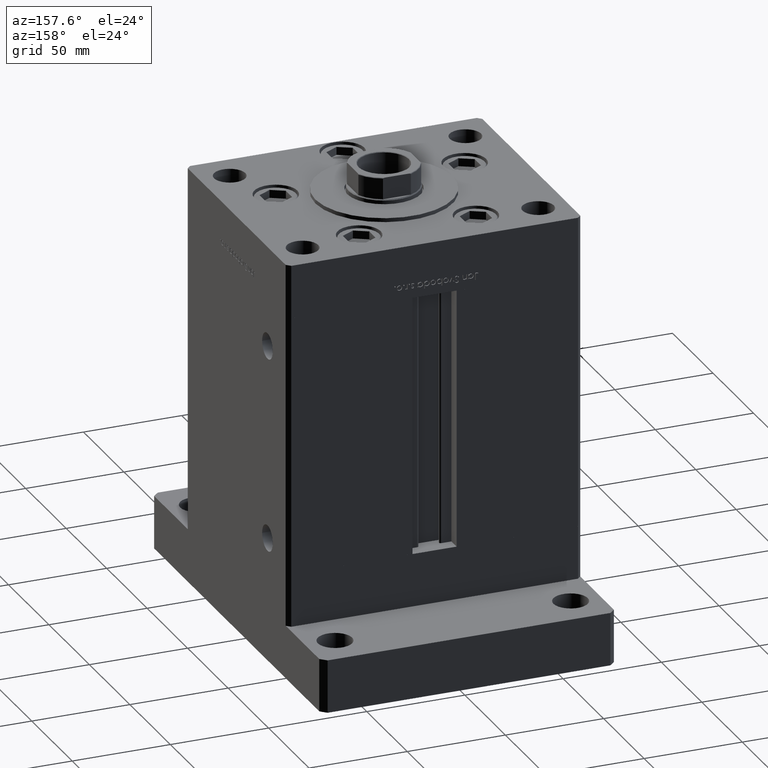
[diagram: clean part render]
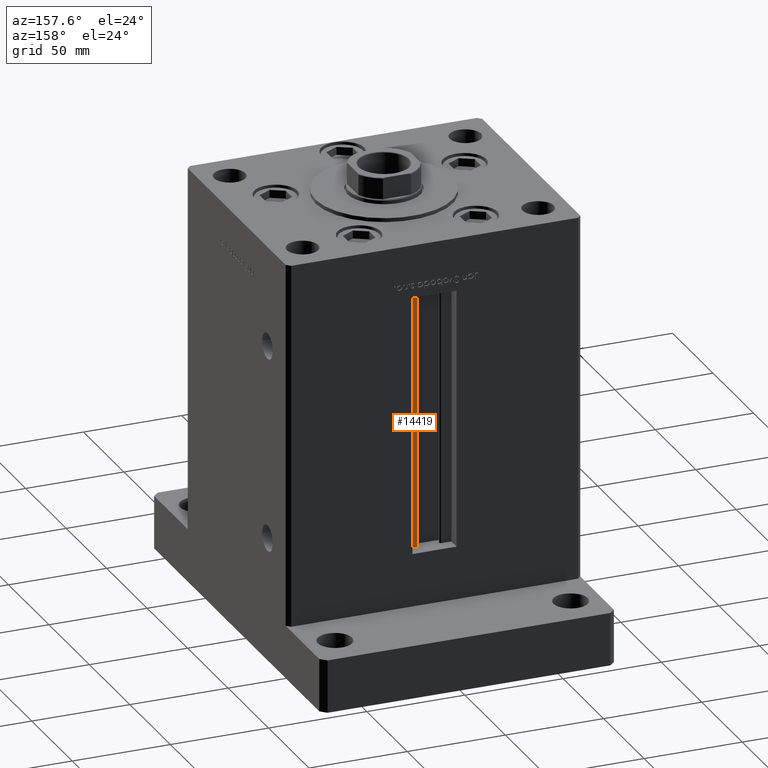
[diagram: same view with one face highlighted and labeled with its STEP entity id]
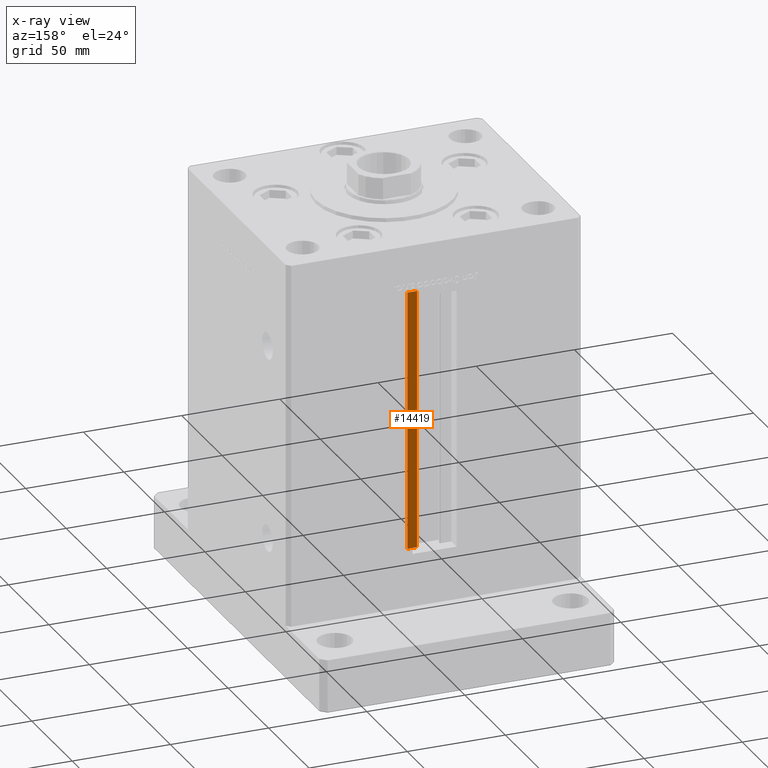
[diagram: x-ray of the same camera — body ghosted, the highlighted face saturated]
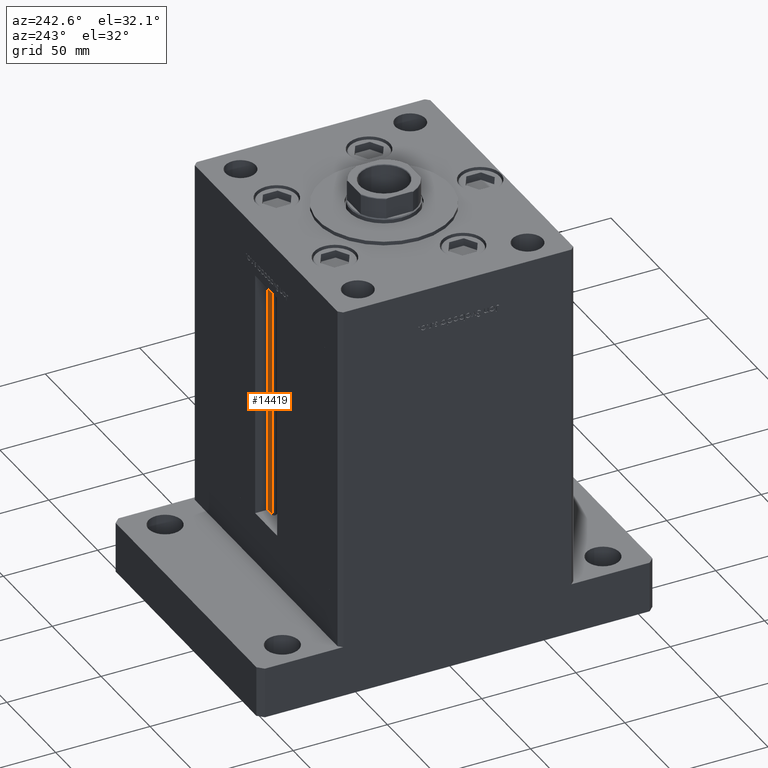
[diagram: same view with one face highlighted and labeled with its STEP entity id]
A machine part, auxiliary view. The second image highlights one B-rep face of the part: STEP entity #14419.
The next image is the same camera in x-ray: the body ghosted, the highlighted face saturated — about 0% of this face is hidden behind the body in this view.
A second angle (auxiliary view) of the same face is appended — the face is thin or edge-on in the first view.
In plain terms, the highlighted planar face has unit normal (0, -1, 0).
Its self-contained STEP definition (entity closure, byte-faithful):
#3107 = DIRECTION ( 'NONE',  ( -0.000000000000000000, -0.000000000000000000, 1.000000000000000000 ) ) ;
#7025 = DIRECTION ( 'NONE',  ( 1.000000000000000000, 0.000000000000000000, 0.000000000000000000 ) ) ;
#7454 = LINE ( 'NONE', #40305, #50705 ) ;
#7972 = CARTESIAN_POINT ( 'NONE',  ( 11.25000000000000178, 55.99999999999999289, 0.000000000000000000 ) ) ;
#8278 = EDGE_LOOP ( 'NONE', ( #50611, #12285, #13803, #49064 ) ) ;
#8502 = DIRECTION ( 'NONE',  ( 0.000000000000000000, -1.000000000000000000, 0.000000000000000000 ) ) ;
#8661 = EDGE_CURVE ( 'NONE', #30964, #39166, #15454, .T. ) ;
#9325 = VERTEX_POINT ( 'NONE', #7972 ) ;
#10429 = AXIS2_PLACEMENT_3D ( 'NONE', #20175, #8502, #45144 ) ;
#10572 = DIRECTION ( 'NONE',  ( -0.000000000000000000, -0.000000000000000000, 1.000000000000000000 ) ) ;
#10947 = EDGE_CURVE ( 'NONE', #30964, #9325, #35798, .T. ) ;
#12285 = ORIENTED_EDGE ( 'NONE', *, *, #10947, .F. ) ;
#13803 = ORIENTED_EDGE ( 'NONE', *, *, #8661, .T. ) ;
#14419 = ADVANCED_FACE ( 'NONE', ( #45415 ), #29127, .F. ) ;
#15454 = LINE ( 'NONE', #39609, #17677 ) ;
#17651 = DIRECTION ( 'NONE',  ( -1.000000000000000000, 0.000000000000000000, 0.000000000000000000 ) ) ;
#17677 = VECTOR ( 'NONE', #10572, 1000.000000000000000 ) ;
#17751 = VECTOR ( 'NONE', #7025, 1000.000000000000000 ) ;
#20175 = CARTESIAN_POINT ( 'NONE',  ( 6.183333333334001480, 55.99999999999999289, 0.000000000000000000 ) ) ;
#21984 = CARTESIAN_POINT ( 'NONE',  ( 0.000000000000000000, 55.99999999999999289, 132.0000000000000000 ) ) ;
#24642 = CARTESIAN_POINT ( 'NONE',  ( 6.183333333334001480, 55.99999999999999289, 0.000000000000000000 ) ) ;
#25303 = CARTESIAN_POINT ( 'NONE',  ( 6.183333333334001480, 55.99999999999999289, 132.0000000000000000 ) ) ;
#27142 = VERTEX_POINT ( 'NONE', #40844 ) ;
#29127 = PLANE ( 'NONE',  #10429 ) ;
#30055 = VECTOR ( 'NONE', #17651, 1000.000000000000000 ) ;
#30964 = VERTEX_POINT ( 'NONE', #32842 ) ;
#32842 = CARTESIAN_POINT ( 'NONE',  ( 6.183333333334001480, 55.99999999999999289, 0.000000000000000000 ) ) ;
#33124 = EDGE_CURVE ( 'NONE', #9325, #27142, #7454, .T. ) ;
#35798 = LINE ( 'NONE', #24642, #17751 ) ;
#39166 = VERTEX_POINT ( 'NONE', #25303 ) ;
#39609 = CARTESIAN_POINT ( 'NONE',  ( 6.183333333334001480, 55.99999999999999289, 0.000000000000000000 ) ) ;
#40305 = CARTESIAN_POINT ( 'NONE',  ( 11.25000000000000178, 55.99999999999999289, 0.000000000000000000 ) ) ;
#40844 = CARTESIAN_POINT ( 'NONE',  ( 11.25000000000000178, 55.99999999999999289, 132.0000000000000000 ) ) ;
#41134 = EDGE_CURVE ( 'NONE', #27142, #39166, #42096, .T. ) ;
#42096 = LINE ( 'NONE', #21984, #30055 ) ;
#45144 = DIRECTION ( 'NONE',  ( 0.000000000000000000, -0.000000000000000000, -1.000000000000000000 ) ) ;
#45415 = FACE_OUTER_BOUND ( 'NONE', #8278, .T. ) ;
#49064 = ORIENTED_EDGE ( 'NONE', *, *, #41134, .F. ) ;
#50611 = ORIENTED_EDGE ( 'NONE', *, *, #33124, .F. ) ;
#50705 = VECTOR ( 'NONE', #3107, 1000.000000000000000 ) ;